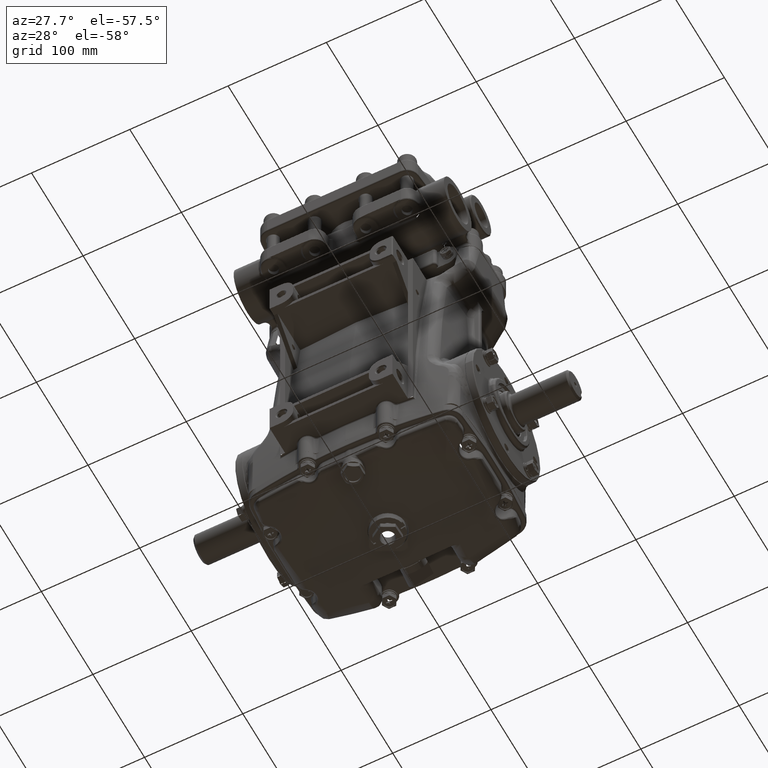
[diagram: clean part render]
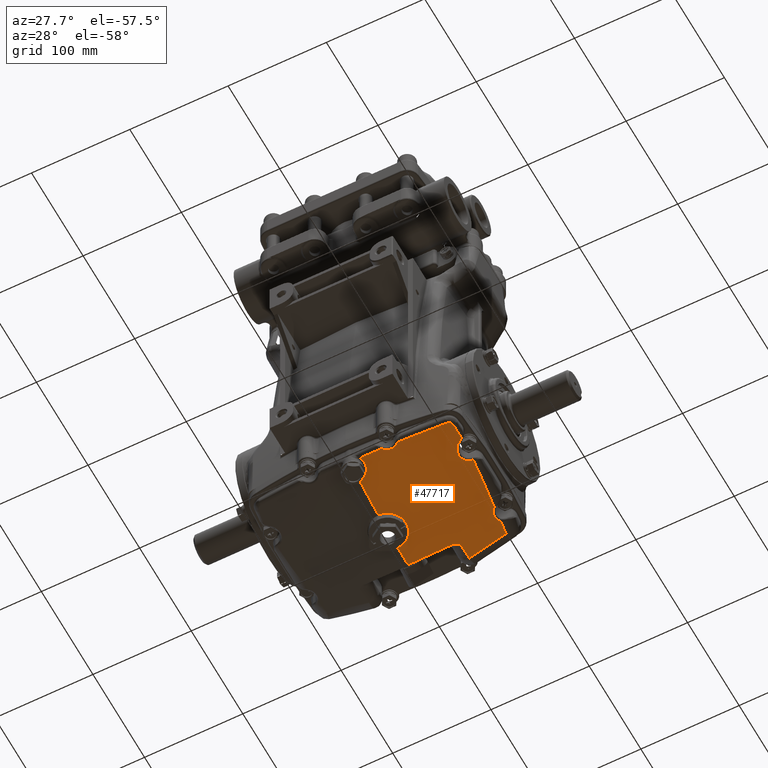
[diagram: same view with one face highlighted and labeled with its STEP entity id]
A machine part, auxiliary view. The second image highlights one B-rep face of the part: STEP entity #47717.
In plain terms, the highlighted toroidal blend (fillet) surface has major radius 100 mm and minor (blend) radius 400 mm.
Its self-contained STEP definition (entity closure, byte-faithful):
#860 = CARTESIAN_POINT ( 'NONE',  ( 1.339466257598047827, -2.769926032194782728, -3.649340496259566358 ) ) ;
#900 = CARTESIAN_POINT ( 'NONE',  ( 3.586567978287549696, 2.204579372434504858, -3.907619816998144646 ) ) ;
#906 = CARTESIAN_POINT ( 'NONE',  ( 3.583763882361810094, -1.542539807167969679, -3.647216038498761304 ) ) ;
#1071 = CARTESIAN_POINT ( 'NONE',  ( 3.912881244489315069, -2.231596983742285545, -3.433420632372893966 ) ) ;
#1513 = CARTESIAN_POINT ( 'NONE',  ( 0.4005101008080272917, -2.387092339918871264, -3.792106912017034759 ) ) ;
#1901 = CARTESIAN_POINT ( 'NONE',  ( 3.586567978287549696, 2.204579372434504858, -3.907619816998144646 ) ) ;
#2025 = CARTESIAN_POINT ( 'NONE',  ( 3.634378383212812480, -1.640035068897425008, -3.618441625795617345 ) ) ;
#2078 = CARTESIAN_POINT ( 'NONE',  ( 0.2131791482389450154, -2.215999427716018211, -3.836458375924236108 ) ) ;
#2284 = ORIENTED_EDGE ( 'NONE', *, *, #40969, .F. ) ;
#2571 = B_SPLINE_CURVE_WITH_KNOTS ( 'NONE', 3,
 ( #11045, #36868, #62193, #860, #9355, #96488, #80169, #53774, #45330, #28467, #62762, #97052, #65505, #90256, #21679, #20589, #99262, #12162, #13234, #107177, #5894, #3686 ),
 .UNSPECIFIED., .F., .F.,
 ( 4, 2, 2, 2, 2, 2, 2, 2, 2, 2, 4 ),
 ( 0.000000000000000000, 0.002171790190448051258, 0.004343580380896102516, 0.006515370571344154642, 0.007601265666568180271, 0.008687160761792205033, 0.009773055857016231529, 0.01085895095224025629, 0.01303074114268829367, 0.01520253133313632932, 0.01737432152358436496 ),
 .UNSPECIFIED. ) ;
#2596 = CARTESIAN_POINT ( 'NONE',  ( 3.823806146129085537, -1.793153042647170903, -3.549776368419175654 ) ) ;
#2798 = DIRECTION ( 'NONE',  ( 0.000000000000000000, -1.000000000000000000, 0.000000000000000000 ) ) ;
#3168 = CARTESIAN_POINT ( 'NONE',  ( 3.676385997344915335, -1.691798379989083001, -3.599916982425717116 ) ) ;
#3411 = B_SPLINE_CURVE_WITH_KNOTS ( 'NONE', 3,
 ( #68887, #103209, #53147, #43589, #61014, #95853 ),
 .UNSPECIFIED., .F., .F.,
 ( 4, 2, 4 ),
 ( 0.8787052562053231375, 0.9496522024094323777, 1.000000000000000000 ),
 .UNSPECIFIED. ) ;
#3627 = ORIENTED_EDGE ( 'NONE', *, *, #87674, .F. ) ;
#3686 = CARTESIAN_POINT ( 'NONE',  ( 1.865905063327786717, -2.804038209525552716, -3.595586502535783158 ) ) ;
#3707 = CARTESIAN_POINT ( 'NONE',  ( 0.09858804508712384895, 0.7500397513758904067, -4.244482005487065557 ) ) ;
#4373 = CARTESIAN_POINT ( 'NONE',  ( 3.800890650622665845, 0.4067580574768949186, -3.859066267428227448 ) ) ;
#5288 = AXIS2_PLACEMENT_3D ( 'NONE', #20385, #22022, #74267 ) ;
#5613 = ORIENTED_EDGE ( 'NONE', *, *, #32308, .F. ) ;
#5894 = CARTESIAN_POINT ( 'NONE',  ( 1.844824157437632950, -2.785741652843493732, -3.602745482561447332 ) ) ;
#5915 = CARTESIAN_POINT ( 'NONE',  ( 0.7275429721425328289, 0.1218267962290373735, -4.192755238023530673 ) ) ;
#6937 = CARTESIAN_POINT ( 'NONE',  ( 3.646664816487408256, 1.641861633727149661, -3.915456687385084233 ) ) ;
#7051 = CARTESIAN_POINT ( 'NONE',  ( 0.7048509219428266137, -0.1856555288772051560, -4.165563374280587539 ) ) ;
#7147 = EDGE_CURVE ( 'NONE', #90563, #54308, #102169, .T. ) ;
#8256 = B_SPLINE_CURVE_WITH_KNOTS ( 'NONE', 3,
 ( #87684, #1071, #35399, #104031 ),
 .UNSPECIFIED., .F., .F.,
 ( 4, 4 ),
 ( 0.000000000000000000, 0.1184049980374857342 ),
 .UNSPECIFIED. ) ;
#8343 = CARTESIAN_POINT ( 'NONE',  ( 0.2680847069381476211, -2.250353468461625095, -3.827589196319168163 ) ) ;
#8623 = VERTEX_POINT ( 'NONE', #20567 ) ;
#8896 = CARTESIAN_POINT ( 'NONE',  ( 0.4553247931715777019, -2.757633980935197737, -3.694247398463087251 ) ) ;
#9224 = EDGE_LOOP ( 'NONE', ( #2284, #77234, #5613, #18913, #3627, #13962, #54616, #45006, #16849, #43752, #38120, #74277, #51141, #72835, #12924, #35561, #87550, #90746, #100933, #53944, #69801, #53699 ) ) ;
#9355 = CARTESIAN_POINT ( 'NONE',  ( 1.364082880242045270, -2.754656268253381945, -3.651789098153537250 ) ) ;
#9737 = EDGE_CURVE ( 'NONE', #106215, #8623, #89598, .T. ) ;
#10169 = CARTESIAN_POINT ( 'NONE',  ( 0.000000000000000000, 1.398871258882495860, 15.42695392644761476 ) ) ;
#10209 = CARTESIAN_POINT ( 'NONE',  ( 1.876542483643144577, -2.812870495884015387, -3.592079507783254577 ) ) ;
#10480 = CARTESIAN_POINT ( 'NONE',  ( 1.812819203981733018, 1.590664432579984799, -4.173283024214539338 ) ) ;
#10522 = CARTESIAN_POINT ( 'NONE',  ( 2.008661041545683812, 2.395021426171620949, -4.123632080681848500 ) ) ;
#10527 = CARTESIAN_POINT ( 'NONE',  ( 3.577811901941634343, -1.258506167236603801, -3.700535329728496858 ) ) ;
#10748 = EDGE_CURVE ( 'NONE', #72561, #37607, #71868, .T. ) ;
#10994 = CARTESIAN_POINT ( 'NONE',  ( 3.564936251651781074, 1.296662415310360084, -3.932260739193077281 ) ) ;
#11045 = CARTESIAN_POINT ( 'NONE',  ( 1.254974850051161051, -2.845013873635468649, -3.634204289657825271 ) ) ;
#11088 = CARTESIAN_POINT ( 'NONE',  ( 3.742521807436133496, -1.750947928254255936, -3.574878745290116733 ) ) ;
#11558 = CARTESIAN_POINT ( 'NONE',  ( 3.589949382978762316, 1.545143591340030875, -3.927302923417596681 ) ) ;
#12157 = CARTESIAN_POINT ( 'NONE',  ( 1.915449977705430795, 1.636783942038886330, -4.162888247674937148 ) ) ;
#12162 = CARTESIAN_POINT ( 'NONE',  ( 1.747962851359756931, -2.730000400886858802, -3.627202804908173039 ) ) ;
#12726 = CARTESIAN_POINT ( 'NONE',  ( 0.5618373180732132433, 0.4973528470300824789, -4.224299276946291926 ) ) ;
#12852 = CIRCLE ( 'NONE', #48823, 15.74803149606299613 ) ;
#12924 = ORIENTED_EDGE ( 'NONE', *, *, #13950, .F. ) ;
#13234 = CARTESIAN_POINT ( 'NONE',  ( 1.773899349228732936, -2.741790388264389478, -3.621584547401897947 ) ) ;
#13253 = CARTESIAN_POINT ( 'NONE',  ( 0.6660055525450880864, 0.3320193020997840305, -4.210634995971126671 ) ) ;
#13950 = EDGE_CURVE ( 'NONE', #73806, #77523, #84717, .T. ) ;
#13962 = ORIENTED_EDGE ( 'NONE', *, *, #111153, .F. ) ;
#14332 = EDGE_CURVE ( 'NONE', #56708, #36473, #67353, .T. ) ;
#14383 = CARTESIAN_POINT ( 'NONE',  ( 0.09434154108899413249, -0.7048593022778643080, -4.116766289548055902 ) ) ;
#14584 = CARTESIAN_POINT ( 'NONE',  ( 3.922866597083941365, -0.9542416793586858681, -3.682798854708527081 ) ) ;
#14947 = CARTESIAN_POINT ( 'NONE',  ( 3.872407700373652339, -0.9735357559509225656, -3.690100359438702515 ) ) ;
#15380 = CARTESIAN_POINT ( 'NONE',  ( 1.876542483643144577, -2.812870495884015387, -3.592079507783254577 ) ) ;
#15499 = CARTESIAN_POINT ( 'NONE',  ( 0.6279044653457337422, -0.3565023860598883210, -4.149897298541354473 ) ) ;
#16191 = VERTEX_POINT ( 'NONE', #94748 ) ;
#16600 = CARTESIAN_POINT ( 'NONE',  ( 0.6900753940086401528, -0.2300336006893100860, -4.161532421230499601 ) ) ;
#16784 = CARTESIAN_POINT ( 'NONE',  ( 0.04460092797394513836, -2.167208029091821864, -3.849010079505816417 ) ) ;
#16849 = ORIENTED_EDGE ( 'NONE', *, *, #47843, .F. ) ;
#17109 = CARTESIAN_POINT ( 'NONE',  ( 0.2840984342002980667, 1.552323950496150795, -4.257337785501216665 ) ) ;
#18079 = CARTESIAN_POINT ( 'NONE',  ( 2.652583506864619078, -2.737926215506777616, -3.520903792172097369 ) ) ;
#18393 = CARTESIAN_POINT ( 'NONE',  ( 3.593763790893985455, -1.216434988306101861, -3.704813475299584269 ) ) ;
#18913 = ORIENTED_EDGE ( 'NONE', *, *, #110625, .F. ) ;
#18948 = CARTESIAN_POINT ( 'NONE',  ( 3.666267401420375105, -1.103058151253731634, -3.710059555641522344 ) ) ;
#19563 = CARTESIAN_POINT ( 'NONE',  ( 0.4210627623333653147, -2.850939970837875315, -3.669224017197981524 ) ) ;
#19788 = CARTESIAN_POINT ( 'NONE',  ( 0.000000000000000000, 1.398871258882495860, 11.48994605243186840 ) ) ;
#20304 = B_SPLINE_CURVE_WITH_KNOTS ( 'NONE', 3,
 ( #98319, #99398, #81398, #4373, #38676, #37010 ),
 .UNSPECIFIED., .F., .F.,
 ( 4, 2, 4 ),
 ( 0.3162942192141539044, 0.5426584013768196435, 0.7479460576468662802 ),
 .UNSPECIFIED. ) ;
#20385 = CARTESIAN_POINT ( 'NONE',  ( 0.000000000000000000, 1.398871258882495860, 11.48994605243186840 ) ) ;
#20567 = CARTESIAN_POINT ( 'NONE',  ( 1.254974850051161051, -2.845013873635468649, -3.634204289657825271 ) ) ;
#20589 = CARTESIAN_POINT ( 'NONE',  ( 1.667393450367502972, -2.705358816505081254, -3.641120838932098369 ) ) ;
#21166 = CARTESIAN_POINT ( 'NONE',  ( 1.484937481530693995E-28, 0.7562672354312626188, -4.244969138634028916 ) ) ;
#21679 = CARTESIAN_POINT ( 'NONE',  ( 1.625072591418783352, -2.699646893033972983, -3.646304339591891264 ) ) ;
#22022 = DIRECTION ( 'NONE',  ( -1.000000000000000000, -0.000000000000000000, -0.000000000000000000 ) ) ;
#22250 = CARTESIAN_POINT ( 'NONE',  ( 0.7341717137746136546, 0.02429900690912776412, -4.184262191811313869 ) ) ;
#22805 = CARTESIAN_POINT ( 'NONE',  ( 0.3746060256561361546, 0.6540492600090598296, -4.236910178975861641 ) ) ;
#22834 = EDGE_CURVE ( 'NONE', #51766, #58896, #20304, .T. ) ;
#23478 = CARTESIAN_POINT ( 'NONE',  ( 1.248892005232679070, -2.851770421669239663, -3.632708010484440919 ) ) ;
#23986 = CARTESIAN_POINT ( 'NONE',  ( 3.826861050663636021, -2.544671697334583538, -3.370761410914473455 ) ) ;
#24527 = VERTEX_POINT ( 'NONE', #99151 ) ;
#25050 = CARTESIAN_POINT ( 'NONE',  ( 0.5749609795178111105, -0.4343037677226507243, -4.142646523513473511 ) ) ;
#25177 = CARTESIAN_POINT ( 'NONE',  ( 2.273859509442015536, 2.372132690393285337, -4.097843512510861430 ) ) ;
#25487 = CARTESIAN_POINT ( 'NONE',  ( 1.872930650244136963, -2.810002607033998512, -3.593235740307789250 ) ) ;
#25758 = CARTESIAN_POINT ( 'NONE',  ( 3.728132651066273340, -2.589356219755102106, -3.378722439390763110 ) ) ;
#26692 = B_SPLINE_CURVE_WITH_KNOTS ( 'NONE', 3,
 ( #27343, #71184, #45892, #105500, #44765, #97610, #80164, #12157, #54334, #79044, #10480, #70063, #39504, #27900 ),
 .UNSPECIFIED., .F., .F.,
 ( 4, 2, 2, 2, 2, 2, 4 ),
 ( -1.811864361505389329E-05, 0.0005167788700578837763, 0.001051676383730821293, 0.002121471411076713675, 0.004261061465768488030, 0.006400651520460261951, 0.008540241575152034137 ),
 .UNSPECIFIED. ) ;
#26805 = VERTEX_POINT ( 'NONE', #82854 ) ;
#26837 = CARTESIAN_POINT ( 'NONE',  ( 3.326332494310697552, 2.245008663854716424, -3.953787052236676924 ) ) ;
#27343 = CARTESIAN_POINT ( 'NONE',  ( 2.008675996339654990, 1.699112209371619775, -4.152456506698113614 ) ) ;
#27858 = CARTESIAN_POINT ( 'NONE',  ( 3.562510148194283577, 1.310712111598008489, -3.932793725230403936 ) ) ;
#27900 = CARTESIAN_POINT ( 'NONE',  ( 1.702059072287212205, 1.572153632602977691, -4.183406504010035221 ) ) ;
#27947 = CARTESIAN_POINT ( 'NONE',  ( 3.601026399760724139, -1.583024536450898800, -3.636075443996183765 ) ) ;
#28097 = CARTESIAN_POINT ( 'NONE',  ( 3.823806146129085537, -1.793153042647170903, -3.549776368419175654 ) ) ;
#28423 = CARTESIAN_POINT ( 'NONE',  ( 3.614920384017087152, 1.595792924870006679, -3.922092998972779299 ) ) ;
#28467 = CARTESIAN_POINT ( 'NONE',  ( 1.525667400830993614, -2.700960804786701974, -3.654157644413241979 ) ) ;
#28985 = CARTESIAN_POINT ( 'NONE',  ( 8.831981099300206732E-29, -0.7094424206646799957, -4.116319017392696011 ) ) ;
#29526 = CARTESIAN_POINT ( 'NONE',  ( 3.720859036953444665, 1.037867726598610263, -3.899014983528266587 ) ) ;
#30147 = CARTESIAN_POINT ( 'NONE',  ( 0.7333930364450117478, -3.167551045727172945E-15, -4.182122793431192420 ) ) ;
#32308 = EDGE_CURVE ( 'NONE', #24527, #78126, #26692, .T. ) ;
#32356 = CARTESIAN_POINT ( 'NONE',  ( 0.4760230791557703567, -0.5347855343700941289, -4.133144669818061168 ) ) ;
#32391 = CARTESIAN_POINT ( 'NONE',  ( 3.749693669493293857, -2.585877006486808849, -3.375376610743262784 ) ) ;
#32857 = CARTESIAN_POINT ( 'NONE',  ( 0.5681572246669033266, 1.553977983604130086, -4.251171031928551614 ) ) ;
#33452 = CARTESIAN_POINT ( 'NONE',  ( 0.6152860796153137857, -0.3765557451413878431, -4.148033955126424921 ) ) ;
#33818 = B_SPLINE_CURVE_WITH_KNOTS ( 'NONE', 3,
 ( #84601, #41912, #14383, #101530, #76742, #67216, #41355, #111075, #82954, #100410, #102076, #32356, #67775, #76184, #25050, #33452, #15499, #58234, #93608, #16600, #7051, #50915, #74517, #108862, #75633, #66109 ),
 .UNSPECIFIED., .F., .F.,
 ( 4, 2, 2, 2, 2, 2, 2, 2, 2, 2, 2, 2, 4 ),
 ( 0.05809600142598594225, 0.06165180410821754359, 0.06342970544933335120, 0.06520760679044915187, 0.06876340947268075321, 0.07054131081379655388, 0.07231921215491235455, 0.07587501483714395589, 0.07765291617825975656, 0.07943081751937555723, 0.08298662020160715858, 0.08476452154272295925, 0.08654242288383875992 ),
 .UNSPECIFIED. ) ;
#34184 = CARTESIAN_POINT ( 'NONE',  ( 0.3763480170513766043, -2.351988000582734717, -3.801246797390521515 ) ) ;
#35399 = CARTESIAN_POINT ( 'NONE',  ( 3.924950099253329050, -2.049902090418418421, -3.473708576440901474 ) ) ;
#35561 = ORIENTED_EDGE ( 'NONE', *, *, #73676, .F. ) ;
#35701 = CARTESIAN_POINT ( 'NONE',  ( 3.699026507002487030, 1.055336998217146549, -3.903626357330575836 ) ) ;
#35839 = CARTESIAN_POINT ( 'NONE',  ( 0.000000000000000000, -2.167208969044768452, -3.849009838011859141 ) ) ;
#36260 = CARTESIAN_POINT ( 'NONE',  ( 3.678672419085700973, 1.075142952580368849, -3.907938068769369444 ) ) ;
#36404 = CARTESIAN_POINT ( 'NONE',  ( 0.2857441941307072852, -2.263187779526285581, -3.824272266622115168 ) ) ;
#36473 = VERTEX_POINT ( 'NONE', #99114 ) ;
#36868 = CARTESIAN_POINT ( 'NONE',  ( 1.273772870566434845, -2.823676290073320327, -3.638950668788394793 ) ) ;
#37010 = CARTESIAN_POINT ( 'NONE',  ( 3.720859036953444665, 1.037867726598610263, -3.899014983528266587 ) ) ;
#37106 = AXIS2_PLACEMENT_3D ( 'NONE', #10169, #2798, #69200 ) ;
#37109 = CARTESIAN_POINT ( 'NONE',  ( 0.7333930364450117478, -3.167551045727172945E-15, -4.182122793431192420 ) ) ;
#37478 = CARTESIAN_POINT ( 'NONE',  ( 3.576575923646594379, -1.521360761792347249, -3.652647049577929739 ) ) ;
#37607 = VERTEX_POINT ( 'NONE', #88953 ) ;
#38007 = CARTESIAN_POINT ( 'NONE',  ( 0.04955429726530854312, 0.7550083279280004334, -4.244870735151792474 ) ) ;
#38120 = ORIENTED_EDGE ( 'NONE', *, *, #96735, .F. ) ;
#38676 = CARTESIAN_POINT ( 'NONE',  ( 3.760680358135514822, 0.7221416255093638936, -3.883983701146128009 ) ) ;
#39504 = CARTESIAN_POINT ( 'NONE',  ( 1.730522399616355012, 1.572818217879113245, -4.180928721025569672 ) ) ;
#39662 = CARTESIAN_POINT ( 'NONE',  ( 0.4550403399699287088, 0.5988651506360025412, -4.232503482409145867 ) ) ;
#40218 = CARTESIAN_POINT ( 'NONE',  ( 0.6759284113060287646, 0.3096682920987803844, -4.208761326364785837 ) ) ;
#40843 = CARTESIAN_POINT ( 'NONE',  ( 3.728132651066273340, -2.589356219755102106, -3.378722439390763110 ) ) ;
#40969 = EDGE_CURVE ( 'NONE', #26805, #97909, #12852, .T. ) ;
#41355 = CARTESIAN_POINT ( 'NONE',  ( 0.2534404189554586018, -0.6647448425849096232, -4.120664280139194169 ) ) ;
#41912 = CARTESIAN_POINT ( 'NONE',  ( 0.04758675287834893824, -0.7094424206646792186, -4.116319017392694235 ) ) ;
#41994 = CARTESIAN_POINT ( 'NONE',  ( 1.251971637957772110, -2.848422811770495500, -3.633445997943378636 ) ) ;
#42413 = B_SPLINE_CURVE_WITH_KNOTS ( 'NONE', 3,
 ( #84065, #84613, #48727, #100983 ),
 .UNSPECIFIED., .F., .F.,
 ( 4, 4 ),
 ( 0.01015079917255678164, 0.03165487600483053027 ),
 .UNSPECIFIED. ) ;
#42652 = CARTESIAN_POINT ( 'NONE',  ( 0.08835894796068850809, -2.173450601052985487, -3.847407205851667733 ) ) ;
#42969 = CARTESIAN_POINT ( 'NONE',  ( 1.702059072287212205, 1.572153632602977691, -4.183406504010035221 ) ) ;
#43205 = CARTESIAN_POINT ( 'NONE',  ( 0.4687358429917098390, -2.579050630521995124, -3.741725147284316932 ) ) ;
#43391 = CARTESIAN_POINT ( 'NONE',  ( 3.422575592899133934, -2.638662439618069566, -3.426138711723587083 ) ) ;
#43589 = CARTESIAN_POINT ( 'NONE',  ( 3.601765199893677494, 2.048469511868058479, -3.912337698474082526 ) ) ;
#43752 = ORIENTED_EDGE ( 'NONE', *, *, #10748, .F. ) ;
#43814 = EDGE_CURVE ( 'NONE', #77523, #56708, #46117, .T. ) ;
#44765 = CARTESIAN_POINT ( 'NONE',  ( 1.980190692304566902, 1.678499398813847021, -4.155740781809343254 ) ) ;
#45006 = ORIENTED_EDGE ( 'NONE', *, *, #22834, .F. ) ;
#45054 = VERTEX_POINT ( 'NONE', #76155 ) ;
#45330 = CARTESIAN_POINT ( 'NONE',  ( 1.497473787614830742, -2.705531607547115858, -3.655153973710840276 ) ) ;
#45851 = CARTESIAN_POINT ( 'NONE',  ( 3.560620847076446882, 1.436730850196259679, -3.933364998822224567 ) ) ;
#45892 = CARTESIAN_POINT ( 'NONE',  ( 1.997352902426142940, 1.690748888302130215, -4.153774301534654434 ) ) ;
#45987 = CARTESIAN_POINT ( 'NONE',  ( 0.4000620936014194773, -2.884814384941388088, -3.660086713610045450 ) ) ;
#46117 = B_SPLINE_CURVE_WITH_KNOTS ( 'NONE', 3,
 ( #10209, #102451, #69237, #93980, #18079, #50727, #43391, #60265 ),
 .UNSPECIFIED., .F., .F.,
 ( 4, 2, 2, 4 ),
 ( 0.04773650512796401291, 0.05965669836104949691, 0.07157689159413498092, 0.09541727806030594894 ),
 .UNSPECIFIED. ) ;
#46478 = CARTESIAN_POINT ( 'NONE',  ( 0.1945908541524337121, 0.7317113525162091126, -4.243045852375299631 ) ) ;
#47717 = ADVANCED_FACE ( 'NONE', ( #77620 ), #69362, .T. ) ;
#47843 = EDGE_CURVE ( 'NONE', #37607, #51766, #50632, .T. ) ;
#48136 = CARTESIAN_POINT ( 'NONE',  ( 0.6437780179931972269, 0.3759461710221977393, -4.214298816990528884 ) ) ;
#48201 = CARTESIAN_POINT ( 'NONE',  ( 3.809013923838506788, -2.558371276684588747, -3.370762654423174798 ) ) ;
#48727 = CARTESIAN_POINT ( 'NONE',  ( 0.9642629750196214378, -2.870057643695236305, -3.646170577708935046 ) ) ;
#48823 = AXIS2_PLACEMENT_3D ( 'NONE', #19788, #54094, #88356 ) ;
#49959 = CARTESIAN_POINT ( 'NONE',  ( 0.000000000000000000, -2.167208969044768452, -3.849009838011859141 ) ) ;
#50264 = CIRCLE ( 'NONE', #5288, 15.74803149606299613 ) ;
#50512 = CARTESIAN_POINT ( 'NONE',  ( 2.008673690766307640, 1.931285806549176698, -4.148006241757110857 ) ) ;
#50632 = B_SPLINE_CURVE_WITH_KNOTS ( 'NONE', 3,
 ( #66858, #58436, #91602, #14584 ),
 .UNSPECIFIED., .F., .F.,
 ( 4, 4 ),
 ( 0.000000000000000000, 1.000000000000000000 ),
 .UNSPECIFIED. ) ;
#50727 = CARTESIAN_POINT ( 'NONE',  ( 3.115494169941632308, -2.681998754487129322, -3.467583127712007940 ) ) ;
#50915 = CARTESIAN_POINT ( 'NONE',  ( 0.7206146750372552923, -0.1166968965644099576, -4.171761959103687190 ) ) ;
#51141 = ORIENTED_EDGE ( 'NONE', *, *, #14332, .F. ) ;
#51421 = CARTESIAN_POINT ( 'NONE',  ( 1.135736795874097593, 1.560590851204712415, -4.226516187002955505 ) ) ;
#51652 = CARTESIAN_POINT ( 'NONE',  ( 0.4516244889267219675, -2.499064403612837548, -3.762799165117463929 ) ) ;
#51766 = VERTEX_POINT ( 'NONE', #110617 ) ;
#52760 = CARTESIAN_POINT ( 'NONE',  ( 0.3338650875553040298, -2.305354086540736702, -3.813353215092893933 ) ) ;
#53147 = CARTESIAN_POINT ( 'NONE',  ( 3.621571924099792561, 1.860832538617129162, -3.915574858415211690 ) ) ;
#53699 = ORIENTED_EDGE ( 'NONE', *, *, #74624, .T. ) ;
#53735 = CARTESIAN_POINT ( 'NONE',  ( 3.574794153733451996, 1.255640863953977115, -3.930117614607726129 ) ) ;
#53774 = CARTESIAN_POINT ( 'NONE',  ( 1.483325959519877557, -2.708548588730216089, -3.655441807153450906 ) ) ;
#53821 = CARTESIAN_POINT ( 'NONE',  ( 3.781625328149628817, -1.775405822286814095, -3.562023126804215067 ) ) ;
#53944 = ORIENTED_EDGE ( 'NONE', *, *, #83695, .F. ) ;
#54094 = DIRECTION ( 'NONE',  ( -1.000000000000000000, -0.000000000000000000, -0.000000000000000000 ) ) ;
#54308 = VERTEX_POINT ( 'NONE', #65012 ) ;
#54334 = CARTESIAN_POINT ( 'NONE',  ( 1.890906886572283119, 1.623384772786901742, -4.165469755234848748 ) ) ;
#54439 = B_SPLINE_CURVE_WITH_KNOTS ( 'NONE', 3,
 ( #93207, #66815, #50512, #85304 ),
 .UNSPECIFIED., .F., .F.,
 ( 4, 4 ),
 ( 4.304351991299643960E-16, 0.01769121847157051342 ),
 .UNSPECIFIED. ) ;
#54616 = ORIENTED_EDGE ( 'NONE', *, *, #99739, .F. ) ;
#54738 = B_SPLINE_CURVE_WITH_KNOTS ( 'NONE', 3,
 ( #29526, #35701, #36260, #63826, #70579, #95874, #71142, #53735, #70021, #10994, #27858, #62146, #105465, #45851, #88559, #79568, #11558, #28423, #97015, #80127 ),
 .UNSPECIFIED., .F., .F.,
 ( 4, 2, 2, 2, 2, 2, 2, 2, 2, 4 ),
 ( 0.000000000000000000, 0.1250002906638771061, 0.2500005813277542122, 0.3750008719916312905, 0.4375010173235698296, 0.5000011626555084243, 0.6250014533193855026, 0.7500017439832625810, 0.8750020346471396593, 1.000000000000000000 ),
 .UNSPECIFIED. ) ;
#55462 = CARTESIAN_POINT ( 'NONE',  ( 0.7151862258133696582, 0.1945437768856430882, -4.199018011514437987 ) ) ;
#56549 = CARTESIAN_POINT ( 'NONE',  ( 0.5920326208318058558, 0.4591306673311356112, -4.221176041747254359 ) ) ;
#56708 = VERTEX_POINT ( 'NONE', #25758 ) ;
#57103 = CARTESIAN_POINT ( 'NONE',  ( 0.6315338706246939049, 0.3973746133061797359, -4.216076595898801571 ) ) ;
#58234 = CARTESIAN_POINT ( 'NONE',  ( 0.6511240499621284705, -0.3152783095671215507, -4.153710239538840554 ) ) ;
#58436 = CARTESIAN_POINT ( 'NONE',  ( 3.889777034679265721, -0.9685477445465712210, -3.687357520554647827 ) ) ;
#58896 = VERTEX_POINT ( 'NONE', #86553 ) ;
#59453 = EDGE_CURVE ( 'NONE', #54308, #106215, #42413, .T. ) ;
#60265 = CARTESIAN_POINT ( 'NONE',  ( 3.728132651066273340, -2.589356219755102106, -3.378722439390763110 ) ) ;
#60957 = CARTESIAN_POINT ( 'NONE',  ( 2.003172396172104453E-16, 1.552323950496151239, -4.257337785501216665 ) ) ;
#61014 = CARTESIAN_POINT ( 'NONE',  ( 3.594173914756467525, 2.126482030281484636, -3.910278122376084742 ) ) ;
#61125 = CARTESIAN_POINT ( 'NONE',  ( 3.559363957123341748, -1.345812678849387600, -3.688516504562397103 ) ) ;
#62146 = CARTESIAN_POINT ( 'NONE',  ( 3.557352052481088656, 1.352681710864065856, -3.933943406355411732 ) ) ;
#62193 = CARTESIAN_POINT ( 'NONE',  ( 1.294437020861755938, -2.804397625306668917, -3.642922082778243364 ) ) ;
#62245 = CARTESIAN_POINT ( 'NONE',  ( 3.565604338808315621, -1.478484673195955557, -3.662868942396729111 ) ) ;
#62762 = CARTESIAN_POINT ( 'NONE',  ( 1.539795395510776155, -2.699382030295283119, -3.653449653502197858 ) ) ;
#63826 = CARTESIAN_POINT ( 'NONE',  ( 3.642605987153234359, 1.117742113554474948, -3.915597871831394183 ) ) ;
#63897 = CARTESIAN_POINT ( 'NONE',  ( 0.2412942400473458149, 0.7172718552742756160, -4.241912704648060917 ) ) ;
#63923 = CARTESIAN_POINT ( 'NONE',  ( 3.714501964040828330, -1.056333570673942068, -3.708340763827934872 ) ) ;
#64586 = B_SPLINE_CURVE_WITH_KNOTS ( 'NONE', 3,
 ( #72487, #96109, #97797, #28097 ),
 .UNSPECIFIED., .F., .F.,
 ( 4, 4 ),
 ( 0.000000000000000000, 1.000000000000000000 ),
 .UNSPECIFIED. ) ;
#65012 = CARTESIAN_POINT ( 'NONE',  ( 0.4000620936014194773, -2.884814384941388088, -3.660086713610045450 ) ) ;
#65505 = CARTESIAN_POINT ( 'NONE',  ( 1.582301698735254281, -2.697416655977634914, -3.650503169443640061 ) ) ;
#65590 = CARTESIAN_POINT ( 'NONE',  ( 3.894353775054843592, -2.412844718384135057, -3.391082440071080839 ) ) ;
#66109 = CARTESIAN_POINT ( 'NONE',  ( 0.7333930364450117478, -3.167551045727172945E-15, -4.182122793431192420 ) ) ;
#66815 = CARTESIAN_POINT ( 'NONE',  ( 2.008668713783337445, 2.163255561837237106, -4.138398513542967727 ) ) ;
#66858 = CARTESIAN_POINT ( 'NONE',  ( 3.872407700373652339, -0.9735357559509225656, -3.690100359438702515 ) ) ;
#67216 = CARTESIAN_POINT ( 'NONE',  ( 0.2310270170215033836, -0.6725634065777835735, -4.119906007044968455 ) ) ;
#67353 = B_SPLINE_CURVE_WITH_KNOTS ( 'NONE', 3,
 ( #40843, #32391, #103643, #48201, #23986, #94632, #82994, #108905, #100449, #65590 ),
 .UNSPECIFIED., .F., .F.,
 ( 4, 2, 2, 2, 4 ),
 ( 0.000000000000000000, 0.2500000000000000000, 0.5000000000000000000, 0.7500000000000000000, 1.000000000000000000 ),
 .UNSPECIFIED. ) ;
#67775 = CARTESIAN_POINT ( 'NONE',  ( 0.4939085513583030829, -0.5190591162143012305, -4.134639758097313766 ) ) ;
#68507 = CARTESIAN_POINT ( 'NONE',  ( 0.4379969648223513978, -2.460565197906706913, -3.772899590880935516 ) ) ;
#68887 = CARTESIAN_POINT ( 'NONE',  ( 3.646664816487408256, 1.641861633727149661, -3.915456687385084233 ) ) ;
#69200 = DIRECTION ( 'NONE',  ( 0.000000000000000000, 0.000000000000000000, -1.000000000000000000 ) ) ;
#69237 = CARTESIAN_POINT ( 'NONE',  ( 2.187762165971133044, -2.786261965328660661, -3.566853002154211527 ) ) ;
#69362 = TOROIDAL_SURFACE ( 'NONE', #37106, 3.937007874015747255, 15.74803149606299257 ) ;
#69557 = CARTESIAN_POINT ( 'NONE',  ( 3.561781319896857312, -1.456787230011171275, -3.667668395193122155 ) ) ;
#69801 = ORIENTED_EDGE ( 'NONE', *, *, #84363, .T. ) ;
#70021 = CARTESIAN_POINT ( 'NONE',  ( 3.571077422130410461, 1.269157955343096056, -3.930922902736151414 ) ) ;
#70063 = CARTESIAN_POINT ( 'NONE',  ( 1.758305726548180514, 1.576970522116406315, -4.178409998767908640 ) ) ;
#70112 = CARTESIAN_POINT ( 'NONE',  ( 3.603287535501370709, -1.196200514404077042, -3.706475229060999244 ) ) ;
#70170 = CARTESIAN_POINT ( 'NONE',  ( 0.4719141497785583339, -2.618991682242088004, -3.731159005671315310 ) ) ;
#70579 = CARTESIAN_POINT ( 'NONE',  ( 3.626681482134549661, 1.140662726550395467, -3.918990675833525561 ) ) ;
#71142 = CARTESIAN_POINT ( 'NONE',  ( 3.587844626081796662, 1.215763394942464659, -3.927301361374851751 ) ) ;
#71184 = CARTESIAN_POINT ( 'NONE',  ( 2.003069288343956700, 1.694939550856163546, -4.153111690900376907 ) ) ;
#71868 = B_SPLINE_CURVE_WITH_KNOTS ( 'NONE', 3,
 ( #2596, #53821, #11088, #104982, #3168, #89217, #2025, #96537, #27947, #906, #37478, #62245, #69557, #105554, #103871, #61125, #95414, #95963, #10527, #18393, #70112, #88081, #104423, #18948, #87520, #63923, #73423, #107757, #108861, #14947 ),
 .UNSPECIFIED., .F., .F.,
 ( 4, 2, 2, 2, 2, 2, 2, 2, 2, 2, 2, 2, 2, 2, 4 ),
 ( 0.000000000000000000, 0.1250000000000000833, 0.1874999999999999722, 0.2500000000000000000, 0.3125000000000000555, 0.3750000000000000000, 0.4374999999999999445, 0.5000000000000000000, 0.5625000000000000000, 0.6250000000000000000, 0.6875000000000000000, 0.7500000000000000000, 0.8125000000000000000, 0.8749999999999998890, 1.000000000000000000 ),
 .UNSPECIFIED. ) ;
#72292 = CARTESIAN_POINT ( 'NONE',  ( 3.823806146129085537, -1.793153042647170903, -3.549776368419175654 ) ) ;
#72322 = CARTESIAN_POINT ( 'NONE',  ( 0.7304387299562642433, 0.09732984003821970598, -4.190633746556748918 ) ) ;
#72487 = CARTESIAN_POINT ( 'NONE',  ( 3.931430012626015102, -1.867895298749763011, -3.511778674847698234 ) ) ;
#72561 = VERTEX_POINT ( 'NONE', #72292 ) ;
#72835 = ORIENTED_EDGE ( 'NONE', *, *, #43814, .F. ) ;
#73403 = CARTESIAN_POINT ( 'NONE',  ( 0.3317191125512596872, 0.6775665606348740821, -4.238776474263090677 ) ) ;
#73423 = CARTESIAN_POINT ( 'NONE',  ( 3.732325436642770722, -1.042304915510469110, -3.707121402107437902 ) ) ;
#73676 = EDGE_CURVE ( 'NONE', #8623, #73806, #2571, .T. ) ;
#73806 = VERTEX_POINT ( 'NONE', #109926 ) ;
#74267 = DIRECTION ( 'NONE',  ( 0.000000000000000000, 0.000000000000000000, 1.000000000000000000 ) ) ;
#74277 = ORIENTED_EDGE ( 'NONE', *, *, #85451, .F. ) ;
#74517 = CARTESIAN_POINT ( 'NONE',  ( 0.7247818437609885311, -0.09329191370342282408, -4.173855152957791859 ) ) ;
#74624 = EDGE_CURVE ( 'NONE', #91908, #97909, #100514, .T. ) ;
#74740 = EDGE_CURVE ( 'NONE', #26805, #78126, #97944, .T. ) ;
#75633 = CARTESIAN_POINT ( 'NONE',  ( 0.7326446444890953869, -0.02335393701120251631, -4.180066603431411565 ) ) ;
#76155 = CARTESIAN_POINT ( 'NONE',  ( 3.931430012626015102, -1.867895298749763011, -3.511778674847698234 ) ) ;
#76184 = CARTESIAN_POINT ( 'NONE',  ( 0.5446254467264209920, -0.4699365227754319640, -4.139292738592976306 ) ) ;
#76268 = CARTESIAN_POINT ( 'NONE',  ( 1.254974850051161051, -2.845013873635468649, -3.634204289657825271 ) ) ;
#76742 = CARTESIAN_POINT ( 'NONE',  ( 0.1859544217699561075, -0.6859052078635381466, -4.118610563163558780 ) ) ;
#77234 = ORIENTED_EDGE ( 'NONE', *, *, #74740, .T. ) ;
#77476 = CARTESIAN_POINT ( 'NONE',  ( 0.4377237971306701114, -2.814335734729316751, -3.679065092924926894 ) ) ;
#77523 = VERTEX_POINT ( 'NONE', #105543 ) ;
#77620 = FACE_OUTER_BOUND ( 'NONE', #9224, .T. ) ;
#78126 = VERTEX_POINT ( 'NONE', #98361 ) ;
#78788 = VERTEX_POINT ( 'NONE', #1901 ) ;
#79044 = CARTESIAN_POINT ( 'NONE',  ( 1.839702383721283807, 1.600343899877533449, -4.170657121996544703 ) ) ;
#79568 = CARTESIAN_POINT ( 'NONE',  ( 3.580080407361442063, 1.518979941176583637, -3.929356037068856722 ) ) ;
#79742 = VERTEX_POINT ( 'NONE', #6937 ) ;
#80127 = CARTESIAN_POINT ( 'NONE',  ( 3.646664816487408256, 1.641861633727149661, -3.915456687385084233 ) ) ;
#80164 = CARTESIAN_POINT ( 'NONE',  ( 1.951141882963512098, 1.658868436047786998, -4.158998488714520825 ) ) ;
#80169 = CARTESIAN_POINT ( 'NONE',  ( 1.441755554501353176, -2.719601105694877230, -3.655645177967421500 ) ) ;
#81398 = CARTESIAN_POINT ( 'NONE',  ( 3.873885938955531572, -0.2571276511865414616, -3.788110459876600000 ) ) ;
#81824 = CARTESIAN_POINT ( 'NONE',  ( 0.3953793295701341637, 0.6412677182113573071, -4.235893192269966079 ) ) ;
#82854 = CARTESIAN_POINT ( 'NONE',  ( 2.003172396172104453E-16, 1.552323950496151239, -4.257337785501216665 ) ) ;
#82954 = CARTESIAN_POINT ( 'NONE',  ( 0.3610197065516833614, -0.6163141624680216202, -4.125345315309562721 ) ) ;
#82994 = CARTESIAN_POINT ( 'NONE',  ( 3.868879502842162310, -2.494329789588826340, -3.375363340974605109 ) ) ;
#83695 = EDGE_CURVE ( 'NONE', #92781, #90563, #50264, .T. ) ;
#84065 = CARTESIAN_POINT ( 'NONE',  ( 0.4000620936014194773, -2.884814384941388088, -3.660086713610045450 ) ) ;
#84363 = EDGE_CURVE ( 'NONE', #92781, #91908, #33818, .T. ) ;
#84601 = CARTESIAN_POINT ( 'NONE',  ( 8.831981099300206732E-29, -0.7094424206646799957, -4.116319017392696011 ) ) ;
#84613 = CARTESIAN_POINT ( 'NONE',  ( 0.6823706657701417155, -2.879987158023668226, -3.655534384585330532 ) ) ;
#84717 = B_SPLINE_CURVE_WITH_KNOTS ( 'NONE', 3,
 ( #102521, #92392, #25487, #15380 ),
 .UNSPECIFIED., .F., .F.,
 ( 4, 4 ),
 ( 0.000000000000000000, 0.0003623067658960041262 ),
 .UNSPECIFIED. ) ;
#85304 = CARTESIAN_POINT ( 'NONE',  ( 2.008675996339654990, 1.699112209371619775, -4.152456506698113614 ) ) ;
#85451 = EDGE_CURVE ( 'NONE', #36473, #45054, #8256, .T. ) ;
#85672 = CARTESIAN_POINT ( 'NONE',  ( 1.419107536603219089, 1.565547046440342038, -4.208037935621634418 ) ) ;
#85895 = CARTESIAN_POINT ( 'NONE',  ( 0.4600057126204847302, -2.738354504905432307, -3.699399859044935734 ) ) ;
#86553 = CARTESIAN_POINT ( 'NONE',  ( 3.720859036953444665, 1.037867726598610263, -3.899014983528266587 ) ) ;
#87004 = CARTESIAN_POINT ( 'NONE',  ( 0.4691532152393825261, -2.678891790807972573, -3.715248119059962661 ) ) ;
#87514 = CARTESIAN_POINT ( 'NONE',  ( 2.538175973886774628, 2.344752768743589399, -4.066935304130395501 ) ) ;
#87520 = CARTESIAN_POINT ( 'NONE',  ( 3.681545678314765535, -1.086663366947252074, -3.709802982522944603 ) ) ;
#87550 = ORIENTED_EDGE ( 'NONE', *, *, #9737, .F. ) ;
#87674 = EDGE_CURVE ( 'NONE', #78788, #16191, #93014, .T. ) ;
#87684 = CARTESIAN_POINT ( 'NONE',  ( 3.894353775054843592, -2.412844718384135057, -3.391082440071080839 ) ) ;
#88081 = CARTESIAN_POINT ( 'NONE',  ( 3.625410740915765206, -1.157264153893474479, -3.708865502917152224 ) ) ;
#88356 = DIRECTION ( 'NONE',  ( 0.000000000000000000, 0.000000000000000000, 1.000000000000000000 ) ) ;
#88559 = CARTESIAN_POINT ( 'NONE',  ( 3.565412905318730896, 1.464936887634123330, -3.932387972768816020 ) ) ;
#88953 = CARTESIAN_POINT ( 'NONE',  ( 3.872407700373652339, -0.9735357559509225656, -3.690100359438702515 ) ) ;
#89217 = CARTESIAN_POINT ( 'NONE',  ( 3.647611407161935659, -1.658154061950619873, -3.612271883846879472 ) ) ;
#89598 = B_SPLINE_CURVE_WITH_KNOTS ( 'NONE', 3,
 ( #100493, #23478, #41994, #76268 ),
 .UNSPECIFIED., .F., .F.,
 ( 4, 4 ),
 ( 6.049187461416408140E-17, 0.0003509764754748541729 ),
 .UNSPECIFIED. ) ;
#90256 = CARTESIAN_POINT ( 'NONE',  ( 1.610741714477412989, -2.698428200343477634, -3.647849478386491651 ) ) ;
#90276 = CARTESIAN_POINT ( 'NONE',  ( 0.7337424049238756574, 0.04862465115337905042, -4.186392271448601932 ) ) ;
#90563 = VERTEX_POINT ( 'NONE', #49959 ) ;
#90746 = ORIENTED_EDGE ( 'NONE', *, *, #59453, .F. ) ;
#91374 = CARTESIAN_POINT ( 'NONE',  ( 0.1228065529224488112, 0.7463428340518629689, -4.244192674345525162 ) ) ;
#91602 = CARTESIAN_POINT ( 'NONE',  ( 3.906558496962277971, -0.9621253536690027586, -3.684930263599442313 ) ) ;
#91908 = VERTEX_POINT ( 'NONE', #37109 ) ;
#91931 = CARTESIAN_POINT ( 'NONE',  ( 0.3095555760775755005, 0.6883235693260595367, -4.239627456504150516 ) ) ;
#92392 = CARTESIAN_POINT ( 'NONE',  ( 1.869383322616463117, -2.807057063106218830, -3.594405301457350710 ) ) ;
#92781 = VERTEX_POINT ( 'NONE', #28985 ) ;
#93014 = B_SPLINE_CURVE_WITH_KNOTS ( 'NONE', 3,
 ( #900, #26837, #95958, #87514, #25177, #10522 ),
 .UNSPECIFIED., .F., .F.,
 ( 4, 2, 4 ),
 ( 0.01283934888689720714, 0.03321189596127591820, 0.05358444303565463446 ),
 .UNSPECIFIED. ) ;
#93207 = CARTESIAN_POINT ( 'NONE',  ( 2.008661041545683812, 2.395021426171620949, -4.123632080681848500 ) ) ;
#93608 = CARTESIAN_POINT ( 'NONE',  ( 0.6616500116575853019, -0.2942615303404707561, -4.155645656034011814 ) ) ;
#93980 = CARTESIAN_POINT ( 'NONE',  ( 2.497898342742232991, -2.755055460498212039, -3.537201936879524666 ) ) ;
#94632 = CARTESIAN_POINT ( 'NONE',  ( 3.856587485639490165, -2.512825882768874308, -3.373057689859858765 ) ) ;
#94748 = CARTESIAN_POINT ( 'NONE',  ( 2.008661041545683812, 2.395021426171620949, -4.123632080681848500 ) ) ;
#94911 = CARTESIAN_POINT ( 'NONE',  ( 0.1735383218888761903, -2.198103771606811474, -3.841065308062286743 ) ) ;
#95414 = CARTESIAN_POINT ( 'NONE',  ( 3.562274940606730222, -1.323796838984823365, -3.691921284895208100 ) ) ;
#95853 = CARTESIAN_POINT ( 'NONE',  ( 3.586567978287549696, 2.204579372434504858, -3.907619816998144646 ) ) ;
#95874 = CARTESIAN_POINT ( 'NONE',  ( 3.599139747410468715, 1.189927783869328071, -3.924876805475173924 ) ) ;
#95958 = CARTESIAN_POINT ( 'NONE',  ( 3.064611472474148446, 2.281165435530093433, -3.994878408164534100 ) ) ;
#95963 = CARTESIAN_POINT ( 'NONE',  ( 3.571462184105320237, -1.280234262307146986, -3.697921987226300722 ) ) ;
#96109 = CARTESIAN_POINT ( 'NONE',  ( 3.900674149539015367, -1.835217963458701806, -3.525240212989143807 ) ) ;
#96488 = CARTESIAN_POINT ( 'NONE',  ( 1.415146399910848896, -2.729585237976970724, -3.654921214786273964 ) ) ;
#96537 = CARTESIAN_POINT ( 'NONE',  ( 3.611139618381015381, -1.602517365950183459, -3.630323230228168274 ) ) ;
#96735 = EDGE_CURVE ( 'NONE', #45054, #72561, #64586, .T. ) ;
#97015 = CARTESIAN_POINT ( 'NONE',  ( 3.629847575948220939, 1.619798204031978495, -3.918972616303384449 ) ) ;
#97052 = CARTESIAN_POINT ( 'NONE',  ( 1.568112543660154401, -2.697609937580155659, -3.651622421538722740 ) ) ;
#97262 = CARTESIAN_POINT ( 'NONE',  ( 1.484937481530693995E-28, 0.7562672354312626188, -4.244969138634028916 ) ) ;
#97610 = CARTESIAN_POINT ( 'NONE',  ( 1.962851284236456051, 1.666562271230724424, -4.157698992238735514 ) ) ;
#97797 = CARTESIAN_POINT ( 'NONE',  ( 3.863625718058384617, -1.809906788860892624, -3.538215173066398211 ) ) ;
#97909 = VERTEX_POINT ( 'NONE', #97262 ) ;
#97944 = B_SPLINE_CURVE_WITH_KNOTS ( 'NONE', 3,
 ( #60957, #17109, #32857, #51421, #85672, #42969 ),
 .UNSPECIFIED., .F., .F.,
 ( 4, 2, 4 ),
 ( 0.04329125418444283724, 0.06493589394034193774, 0.08658053369624105211 ),
 .UNSPECIFIED. ) ;
#98196 = CARTESIAN_POINT ( 'NONE',  ( 0.02474760634068609230, 0.7562672354312619527, -4.244969138634027139 ) ) ;
#98264 = CARTESIAN_POINT ( 'NONE',  ( 1.245739980400027758, -2.855051657995906211, -3.631991507844216649 ) ) ;
#98319 = CARTESIAN_POINT ( 'NONE',  ( 3.922866597083941365, -0.9542416793586858681, -3.682798854708527081 ) ) ;
#98361 = CARTESIAN_POINT ( 'NONE',  ( 1.702059072287212205, 1.572153632602977691, -4.183406504010035221 ) ) ;
#99114 = CARTESIAN_POINT ( 'NONE',  ( 3.894353775054843592, -2.412844718384135057, -3.391082440071080839 ) ) ;
#99151 = CARTESIAN_POINT ( 'NONE',  ( 2.008675996339654990, 1.699112209371619775, -4.152456506698113614 ) ) ;
#99262 = CARTESIAN_POINT ( 'NONE',  ( 1.694780199666231502, -2.711852277465109928, -3.636945158084419205 ) ) ;
#99282 = CARTESIAN_POINT ( 'NONE',  ( 0.7022334094381301739, 0.2414883858161981089, -4.203014988974368649 ) ) ;
#99398 = CARTESIAN_POINT ( 'NONE',  ( 3.905435254941755918, -0.6056825736036504093, -3.740149926762978527 ) ) ;
#99739 = EDGE_CURVE ( 'NONE', #58896, #79742, #54738, .T. ) ;
#99828 = CARTESIAN_POINT ( 'NONE',  ( 0.5106995902058439896, 0.5502211396104974561, -4.228586066003015453 ) ) ;
#100385 = CARTESIAN_POINT ( 'NONE',  ( 0.4355964639879573164, 0.6136756290467081376, -4.233689838263579475 ) ) ;
#100410 = CARTESIAN_POINT ( 'NONE',  ( 0.4199811270316639034, -0.5779753334101672690, -4.129022176410383160 ) ) ;
#100449 = CARTESIAN_POINT ( 'NONE',  ( 3.892198521083986673, -2.433928812051070256, -3.386157344515060785 ) ) ;
#100493 = CARTESIAN_POINT ( 'NONE',  ( 1.245739980400027758, -2.855051657995906211, -3.631991507844216649 ) ) ;
#100514 = B_SPLINE_CURVE_WITH_KNOTS ( 'NONE', 3,
 ( #30147, #22250, #90276, #72322, #5915, #55462, #99282, #40218, #13253, #48136, #57103, #56549, #12726, #99828, #108836, #39662, #100385, #81824, #22805, #73403, #91931, #63897, #46478, #91374, #3707, #38007, #98196, #21166 ),
 .UNSPECIFIED., .F., .F.,
 ( 4, 2, 2, 2, 2, 2, 2, 2, 2, 2, 2, 2, 2, 4 ),
 ( 0.08654242288383875992, 0.08839227102510972822, 0.09024211916638069653, 0.09394181544892263314, 0.09579166359019360144, 0.09764151173146456975, 0.1013412080140065064, 0.1031910561552774885, 0.1050409042965484568, 0.1068907524378194251, 0.1087406005790903796, 0.1124402968616323162, 0.1142901450029032845, 0.1161399931441742528 ),
 .UNSPECIFIED. ) ;
#100933 = ORIENTED_EDGE ( 'NONE', *, *, #7147, .F. ) ;
#100983 = CARTESIAN_POINT ( 'NONE',  ( 1.245739980400027758, -2.855051657995906211, -3.631991507844216649 ) ) ;
#101530 = CARTESIAN_POINT ( 'NONE',  ( 0.1632070964908627630, -0.6914647128491885342, -4.118069878825973085 ) ) ;
#102076 = CARTESIAN_POINT ( 'NONE',  ( 0.4390567035582108590, -0.5642349978772226438, -4.130336662271744785 ) ) ;
#102169 = B_SPLINE_CURVE_WITH_KNOTS ( 'NONE', 3,
 ( #35839, #16784, #42652, #94911, #2078, #8343, #36404, #111261, #52760, #34184, #1513, #68507, #51652, #43205, #70170, #87004, #104473, #85895, #8896, #77476, #19563, #45987 ),
 .UNSPECIFIED., .F., .F.,
 ( 4, 2, 2, 2, 2, 2, 2, 2, 2, 2, 4 ),
 ( 0.000000000000000000, 0.1249999999999998751, 0.2499999999999999167, 0.3124999999999999445, 0.3749999999999999445, 0.5000000000000000000, 0.6250000000000000000, 0.7499999999999998890, 0.8124999999999998890, 0.8750000000000000000, 1.000000000000000000 ),
 .UNSPECIFIED. ) ;
#102451 = CARTESIAN_POINT ( 'NONE',  ( 2.032226649174575961, -2.800345578350611930, -3.580211935989143779 ) ) ;
#102521 = CARTESIAN_POINT ( 'NONE',  ( 1.865905063327786717, -2.804038209525552716, -3.595586502535783158 ) ) ;
#103209 = CARTESIAN_POINT ( 'NONE',  ( 3.633875990936608513, 1.751279334968095291, -3.916149617121006177 ) ) ;
#103643 = CARTESIAN_POINT ( 'NONE',  ( 3.770567827148264328, -2.578838951199222240, -3.373077672788578951 ) ) ;
#103871 = CARTESIAN_POINT ( 'NONE',  ( 3.556923272328574193, -1.390369355138794116, -3.680881840356827084 ) ) ;
#104031 = CARTESIAN_POINT ( 'NONE',  ( 3.931430012626015102, -1.867895298749763011, -3.511778674847698234 ) ) ;
#104423 = CARTESIAN_POINT ( 'NONE',  ( 3.638136033769759248, -1.138410812132507388, -3.709594867113815475 ) ) ;
#104473 = CARTESIAN_POINT ( 'NONE',  ( 0.4669302591580821171, -2.698995474909018810, -3.709897107516295200 ) ) ;
#104982 = CARTESIAN_POINT ( 'NONE',  ( 3.691987149479054597, -1.707457738661032343, -3.593694390311593434 ) ) ;
#105465 = CARTESIAN_POINT ( 'NONE',  ( 3.556640893403860471, 1.380665688956336457, -3.934132113404736231 ) ) ;
#105500 = CARTESIAN_POINT ( 'NONE',  ( 1.985933068909048860, 1.682544462914409511, -4.155086548889387110 ) ) ;
#105543 = CARTESIAN_POINT ( 'NONE',  ( 1.876542483643144577, -2.812870495884015387, -3.592079507783254577 ) ) ;
#105554 = CARTESIAN_POINT ( 'NONE',  ( 3.557432984014971655, -1.412825169511774615, -3.676659020318942428 ) ) ;
#106215 = VERTEX_POINT ( 'NONE', #98264 ) ;
#107177 = CARTESIAN_POINT ( 'NONE',  ( 1.822204368419263698, -2.769635333946050881, -3.609373799083536394 ) ) ;
#107757 = CARTESIAN_POINT ( 'NONE',  ( 3.788616397684259951, -1.004732954730169547, -3.702061152475173422 ) ) ;
#108836 = CARTESIAN_POINT ( 'NONE',  ( 0.4925692811619593603, 0.5671706834012729681, -4.229954282807118382 ) ) ;
#108861 = CARTESIAN_POINT ( 'NONE',  ( 3.829039882577232046, -0.9859898410478351582, -3.696948689675354505 ) ) ;
#108862 = CARTESIAN_POINT ( 'NONE',  ( 0.7307802189789865954, -0.04668326447415634128, -4.178001805595949136 ) ) ;
#108905 = CARTESIAN_POINT ( 'NONE',  ( 3.886738178188245740, -2.454627830697037272, -3.381967238802731313 ) ) ;
#109926 = CARTESIAN_POINT ( 'NONE',  ( 1.865905063327786717, -2.804038209525552716, -3.595586502535783158 ) ) ;
#110617 = CARTESIAN_POINT ( 'NONE',  ( 3.922866597083941365, -0.9542416793586858681, -3.682798854708527081 ) ) ;
#110625 = EDGE_CURVE ( 'NONE', #16191, #24527, #54439, .T. ) ;
#111075 = CARTESIAN_POINT ( 'NONE',  ( 0.3194153901744845037, -0.6380574323343894960, -4.123247116835179860 ) ) ;
#111153 = EDGE_CURVE ( 'NONE', #79742, #78788, #3411, .T. ) ;
#111261 = CARTESIAN_POINT ( 'NONE',  ( 0.3185956466287307443, -2.290677831665465014, -3.817156890625955867 ) ) ;